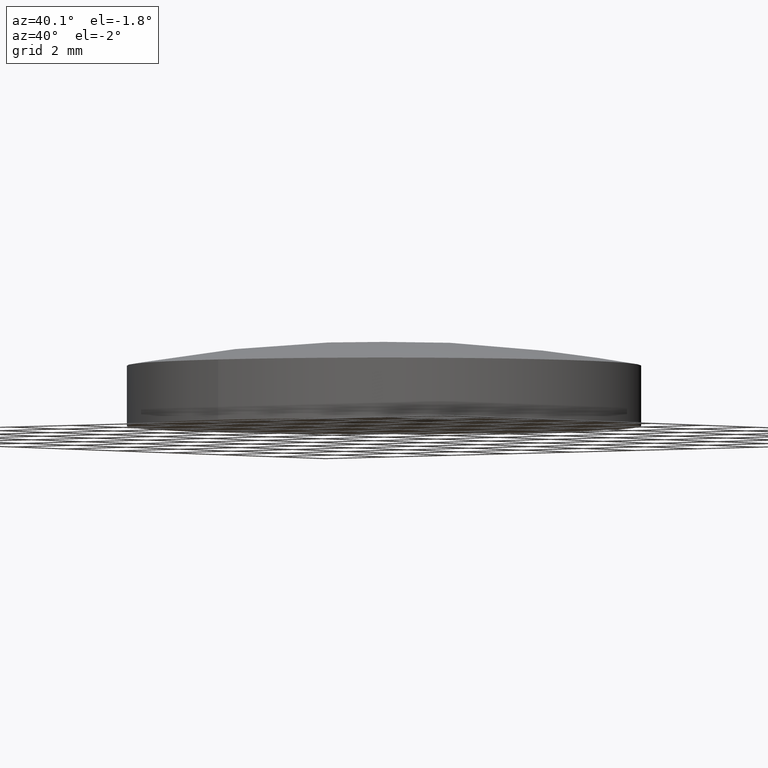
[diagram: clean part render]
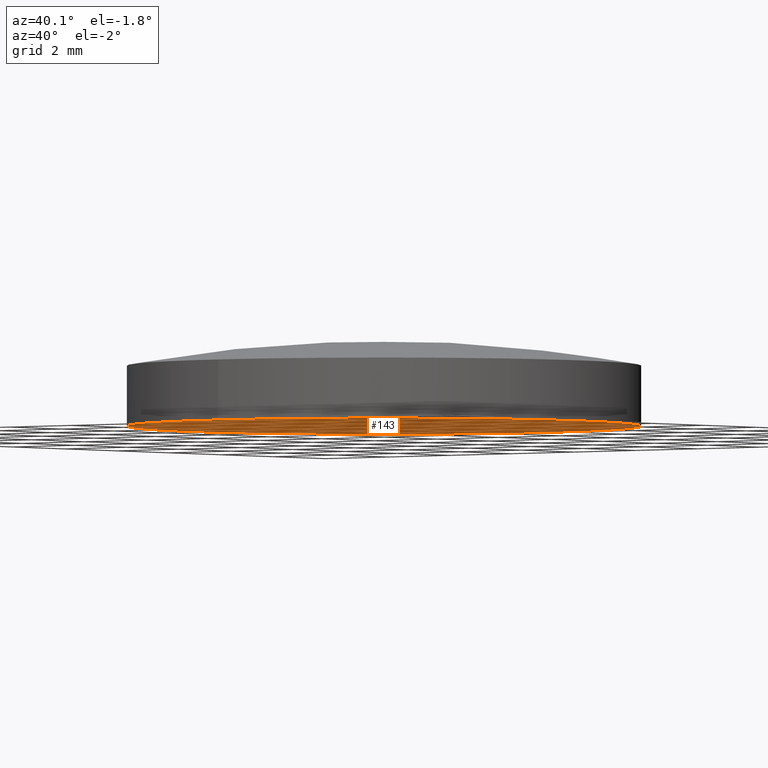
[diagram: same view with one face highlighted and labeled with its STEP entity id]
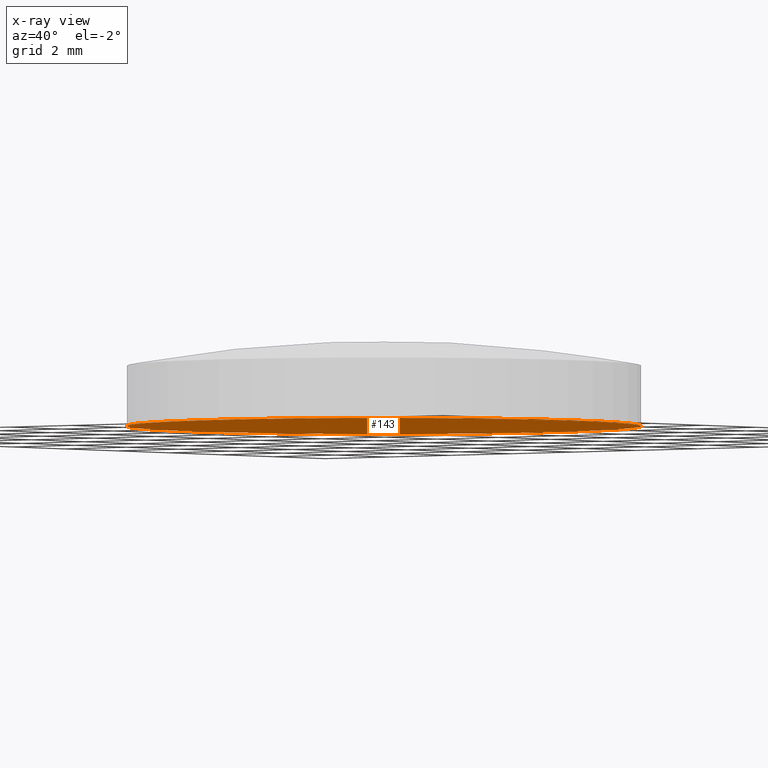
[diagram: x-ray of the same camera — body ghosted, the highlighted face saturated]
A machine part, auxiliary view. The second image highlights one B-rep face of the part: STEP entity #143.
The next image is the same camera in x-ray: the body ghosted, the highlighted face saturated — about 0% of this face is hidden behind the body in this view.
In plain terms, the highlighted planar face has unit normal (0, -0, 1).
Its self-contained STEP definition (entity closure, byte-faithful):
#13 = DIRECTION ( 'NONE',  ( -0.0000000000000000000, -1.836970198721029900E-016, 1.000000000000000000 ) ) ;
#17 = CIRCLE ( 'NONE', #39, 6.349999999999999600 ) ;
#19 = CARTESIAN_POINT ( 'NONE',  ( 0.0000000000000000000, 3.820898013339744900E-016, -1.040000000000001400 ) ) ;
#31 = CARTESIAN_POINT ( 'NONE',  ( 7.776507174585692200E-016, 6.349999999999999600, -1.040000000000000300 ) ) ;
#34 = CARTESIAN_POINT ( 'NONE',  ( 0.0000000000000000000, -6.349999999999999600, -1.040000000000002500 ) ) ;
#39 = AXIS2_PLACEMENT_3D ( 'NONE', #19, #13, #44 ) ;
#44 = DIRECTION ( 'NONE',  ( 0.0000000000000000000, -1.000000000000000000, -1.707404996040164500E-016 ) ) ;
#51 = AXIS2_PLACEMENT_3D ( 'NONE', #56, #60, #59 ) ;
#55 = FACE_OUTER_BOUND ( 'NONE', #136, .T. ) ;
#56 = CARTESIAN_POINT ( 'NONE',  ( 0.0000000000000000000, 3.820898013339744900E-016, -1.040000000000001400 ) ) ;
#57 = CIRCLE ( 'NONE', #51, 6.349999999999999600 ) ;
#59 = DIRECTION ( 'NONE',  ( 0.0000000000000000000, -1.000000000000000000, -1.707404996040164500E-016 ) ) ;
#60 = DIRECTION ( 'NONE',  ( -0.0000000000000000000, -1.836970198721029900E-016, 1.000000000000000000 ) ) ;
#69 = AXIS2_PLACEMENT_3D ( 'NONE', #70, #89, #88 ) ;
#70 = CARTESIAN_POINT ( 'NONE',  ( 0.0000000000000000000, 3.820898013339743900E-016, -1.040000000000000700 ) ) ;
#73 = PLANE ( 'NONE',  #69 ) ;
#88 = DIRECTION ( 'NONE',  ( 0.0000000000000000000, -1.000000000000000000, -1.836970198721029900E-016 ) ) ;
#89 = DIRECTION ( 'NONE',  ( 0.0000000000000000000, -1.836970198721029900E-016, 1.000000000000000000 ) ) ;
#120 = EDGE_CURVE ( 'NONE', #135, #140, #17, .T. ) ;
#128 = ORIENTED_EDGE ( 'NONE', *, *, #120, .F. ) ;
#135 = VERTEX_POINT ( 'NONE', #31 ) ;
#136 = EDGE_LOOP ( 'NONE', ( #198, #128 ) ) ;
#140 = VERTEX_POINT ( 'NONE', #34 ) ;
#142 = EDGE_CURVE ( 'NONE', #140, #135, #57, .T. ) ;
#143 = ADVANCED_FACE ( 'NONE', ( #55 ), #73, .F. ) ;
#198 = ORIENTED_EDGE ( 'NONE', *, *, #142, .F. ) ;